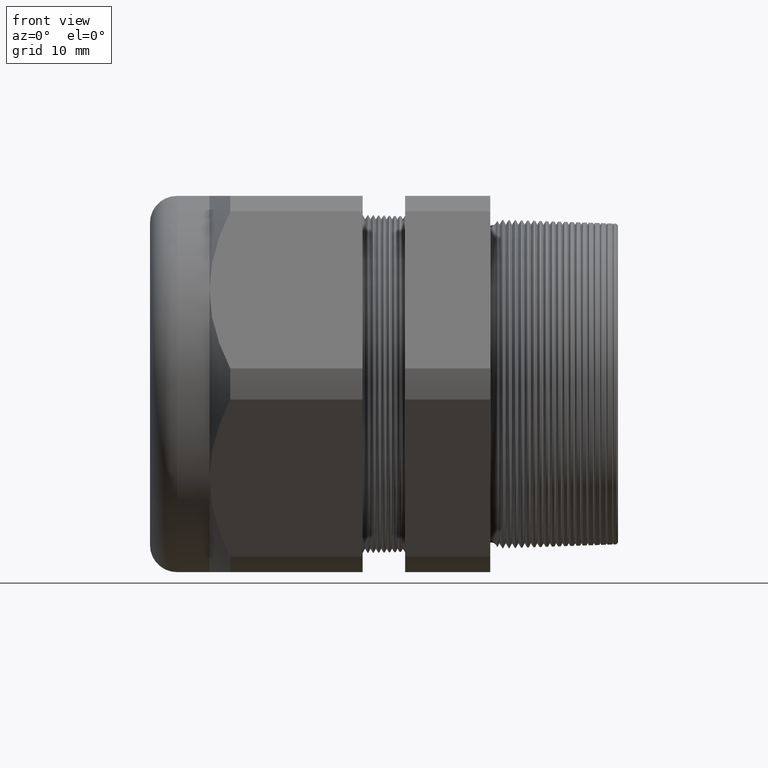
[diagram: clean part render]
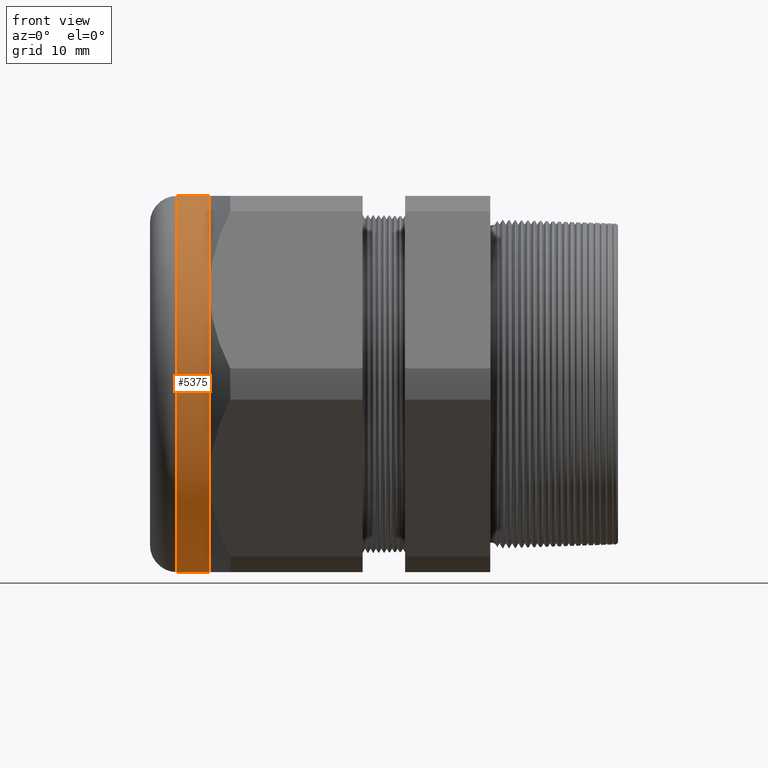
[diagram: same view with one face highlighted and labeled with its STEP entity id]
A machine part, front view. The second image highlights one B-rep face of the part: STEP entity #5375.
In plain terms, the highlighted cylindrical surface (partial cylindrical patch) has radius 26.543 mm, axis along (1, 0, 0).
Its self-contained STEP definition (entity closure, byte-faithful):
#767 = CARTESIAN_POINT ( 'NONE',  ( -2.049999999999999800, 0.0000000000000000000, -1.044999999999999700 ) ) ;
#768 = CARTESIAN_POINT ( 'NONE',  ( -2.049999999999999800, 1.279755905108983900E-016, 1.044999999999999700 ) ) ;
#1043 = DIRECTION ( 'NONE',  ( 1.000000000000000000, 0.0000000000000000000, 0.0000000000000000000 ) ) ;
#1044 = VECTOR ( 'NONE', #1043, 39.37007874015748100 ) ;
#1045 = CARTESIAN_POINT ( 'NONE',  ( 0.0000000000000000000, 1.279755905108983900E-016, 1.044999999999999700 ) ) ;
#1046 = LINE ( 'NONE', #1045, #1044 ) ;
#1047 = CARTESIAN_POINT ( 'NONE',  ( -1.869292000000000000, 0.0000000000000000000, 1.044999999999999700 ) ) ;
#1108 = LINE ( 'NONE', #1165, #1164 ) ;
#1158 = CARTESIAN_POINT ( 'NONE',  ( -1.869292000000000000, 0.0000000000000000000, -1.045000000000000200 ) ) ;
#1163 = DIRECTION ( 'NONE',  ( 1.000000000000000000, 0.0000000000000000000, 0.0000000000000000000 ) ) ;
#1164 = VECTOR ( 'NONE', #1163, 39.37007874015748100 ) ;
#1165 = CARTESIAN_POINT ( 'NONE',  ( 0.0000000000000000000, 0.0000000000000000000, -1.044999999999999700 ) ) ;
#2541 = CARTESIAN_POINT ( 'NONE',  ( -1.869292000000000000, -0.9049965469547379700, -0.5225000000000000800 ) ) ;
#2823 = CARTESIAN_POINT ( 'NONE',  ( -1.869292000000000000, -0.9049965469547383000, 0.5224999999999996300 ) ) ;
#2832 = CARTESIAN_POINT ( 'NONE',  ( 0.0000000000000000000, 0.0000000000000000000, 0.0000000000000000000 ) ) ;
#2833 = AXIS2_PLACEMENT_3D ( 'NONE', #2832, #2895, #2894 ) ;
#2834 = CYLINDRICAL_SURFACE ( 'NONE', #2833, 1.044999999999999700 ) ;
#2835 = FACE_OUTER_BOUND ( 'NONE', #5605, .T. ) ;
#2894 = DIRECTION ( 'NONE',  ( 0.0000000000000000000, 0.0000000000000000000, -1.000000000000000000 ) ) ;
#2895 = DIRECTION ( 'NONE',  ( 1.000000000000000000, 0.0000000000000000000, 0.0000000000000000000 ) ) ;
#3094 = DIRECTION ( 'NONE',  ( 0.0000000000000000000, 0.0000000000000000000, -1.000000000000000000 ) ) ;
#3095 = DIRECTION ( 'NONE',  ( 1.000000000000000000, 0.0000000000000000000, 0.0000000000000000000 ) ) ;
#3096 = CARTESIAN_POINT ( 'NONE',  ( -1.869292000000000000, 0.0000000000000000000, 0.0000000000000000000 ) ) ;
#3097 = AXIS2_PLACEMENT_3D ( 'NONE', #3096, #3095, #3094 ) ;
#3098 = CIRCLE ( 'NONE', #3097, 1.044999999999999700 ) ;
#3100 = DIRECTION ( 'NONE',  ( 0.0000000000000000000, 0.0000000000000000000, -1.000000000000000000 ) ) ;
#3101 = DIRECTION ( 'NONE',  ( 1.000000000000000000, 0.0000000000000000000, 0.0000000000000000000 ) ) ;
#3102 = CARTESIAN_POINT ( 'NONE',  ( -1.869292000000000000, 0.0000000000000000000, 0.0000000000000000000 ) ) ;
#3103 = AXIS2_PLACEMENT_3D ( 'NONE', #3102, #3101, #3100 ) ;
#3104 = CIRCLE ( 'NONE', #3103, 1.044999999999999700 ) ;
#3129 = DIRECTION ( 'NONE',  ( 0.0000000000000000000, 0.0000000000000000000, -1.000000000000000000 ) ) ;
#3130 = DIRECTION ( 'NONE',  ( 1.000000000000000000, 0.0000000000000000000, 0.0000000000000000000 ) ) ;
#3131 = AXIS2_PLACEMENT_3D ( 'NONE', #3137, #3130, #3129 ) ;
#3132 = CIRCLE ( 'NONE', #3131, 1.044999999999999700 ) ;
#3137 = CARTESIAN_POINT ( 'NONE',  ( -1.869292000000000000, 0.0000000000000000000, 0.0000000000000000000 ) ) ;
#3322 = DIRECTION ( 'NONE',  ( 0.0000000000000000000, 0.0000000000000000000, 1.000000000000000000 ) ) ;
#3323 = DIRECTION ( 'NONE',  ( 1.000000000000000000, 0.0000000000000000000, 0.0000000000000000000 ) ) ;
#3324 = CARTESIAN_POINT ( 'NONE',  ( -2.049999999999999800, 0.0000000000000000000, 0.0000000000000000000 ) ) ;
#3325 = AXIS2_PLACEMENT_3D ( 'NONE', #3324, #3323, #3322 ) ;
#3326 = CIRCLE ( 'NONE', #3325, 1.044999999999999700 ) ;
#4160 = VERTEX_POINT ( 'NONE', #768 ) ;
#4161 = VERTEX_POINT ( 'NONE', #767 ) ;
#4342 = VERTEX_POINT ( 'NONE', #1047 ) ;
#4347 = EDGE_CURVE ( 'NONE', #4160, #4342, #1046, .T. ) ;
#4384 = EDGE_CURVE ( 'NONE', #4161, #4386, #1108, .T. ) ;
#4386 = VERTEX_POINT ( 'NONE', #1158 ) ;
#5224 = VERTEX_POINT ( 'NONE', #2541 ) ;
#5352 = VERTEX_POINT ( 'NONE', #2823 ) ;
#5375 = ADVANCED_FACE ( 'NONE', ( #2835 ), #2834, .T. ) ;
#5476 = EDGE_CURVE ( 'NONE', #4342, #5352, #3104, .T. ) ;
#5482 = EDGE_CURVE ( 'NONE', #5352, #5224, #3098, .T. ) ;
#5493 = ORIENTED_EDGE ( 'NONE', *, *, #5476, .F. ) ;
#5494 = ORIENTED_EDGE ( 'NONE', *, *, #5482, .F. ) ;
#5498 = EDGE_CURVE ( 'NONE', #5224, #4386, #3132, .T. ) ;
#5516 = ORIENTED_EDGE ( 'NONE', *, *, #5498, .F. ) ;
#5536 = ORIENTED_EDGE ( 'NONE', *, *, #4384, .T. ) ;
#5586 = ORIENTED_EDGE ( 'NONE', *, *, #4347, .F. ) ;
#5589 = EDGE_CURVE ( 'NONE', #4160, #4161, #3326, .T. ) ;
#5595 = ORIENTED_EDGE ( 'NONE', *, *, #5589, .T. ) ;
#5605 = EDGE_LOOP ( 'NONE', ( #5586, #5595, #5536, #5516, #5494, #5493 ) ) ;